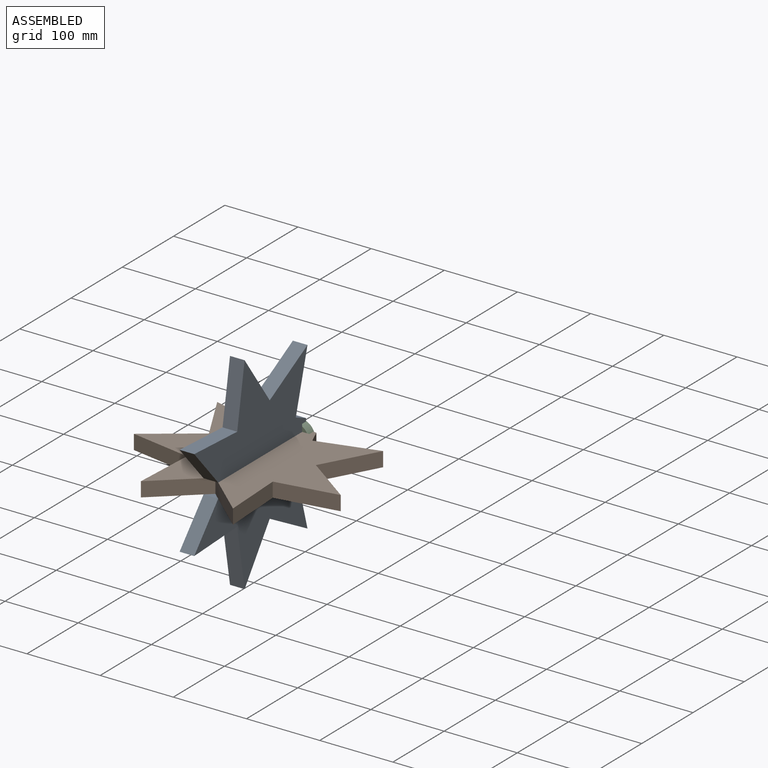
[diagram: assembled view]
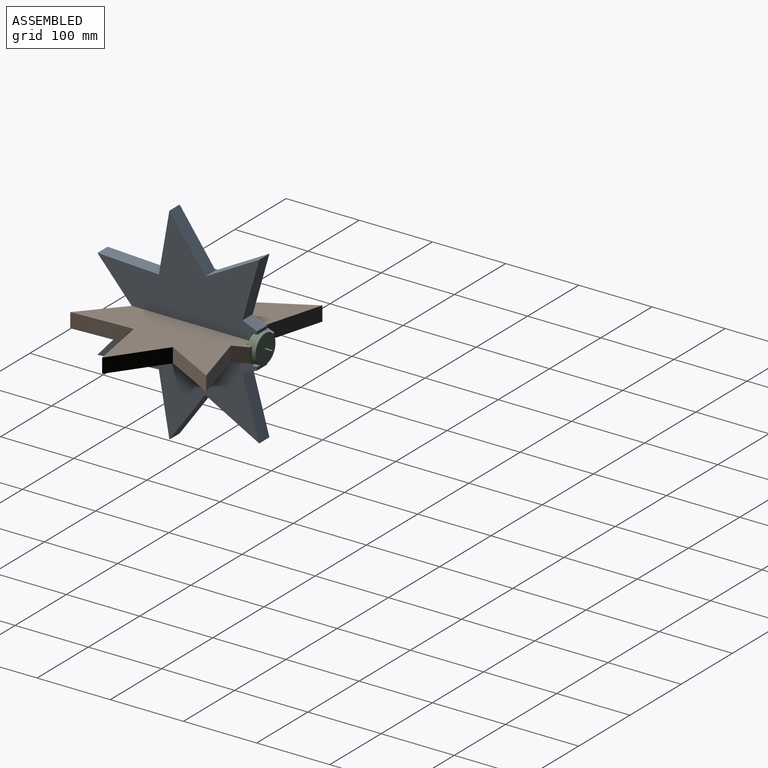
[diagram: assembled view, second angle]
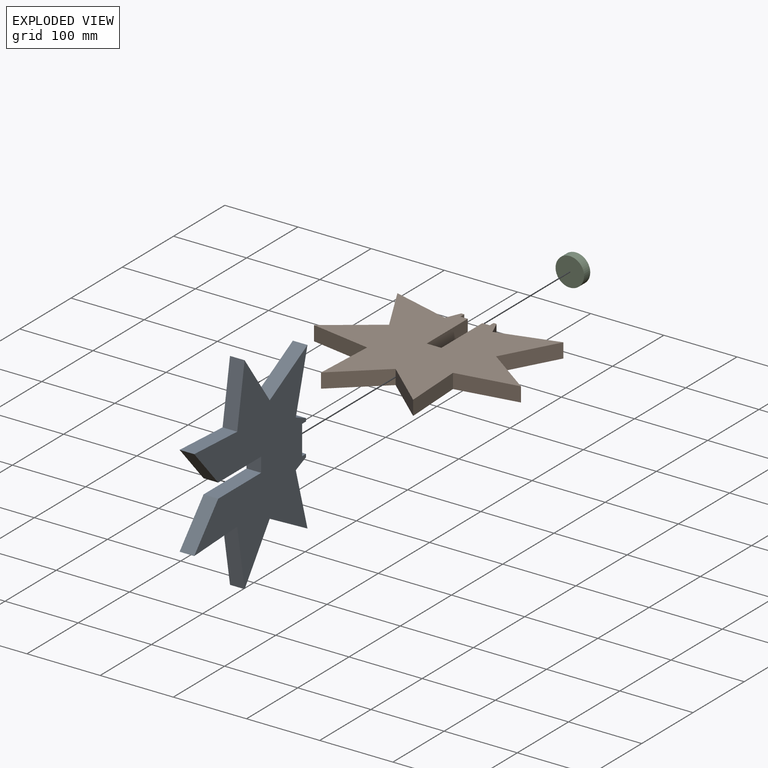
[diagram: exploded view]
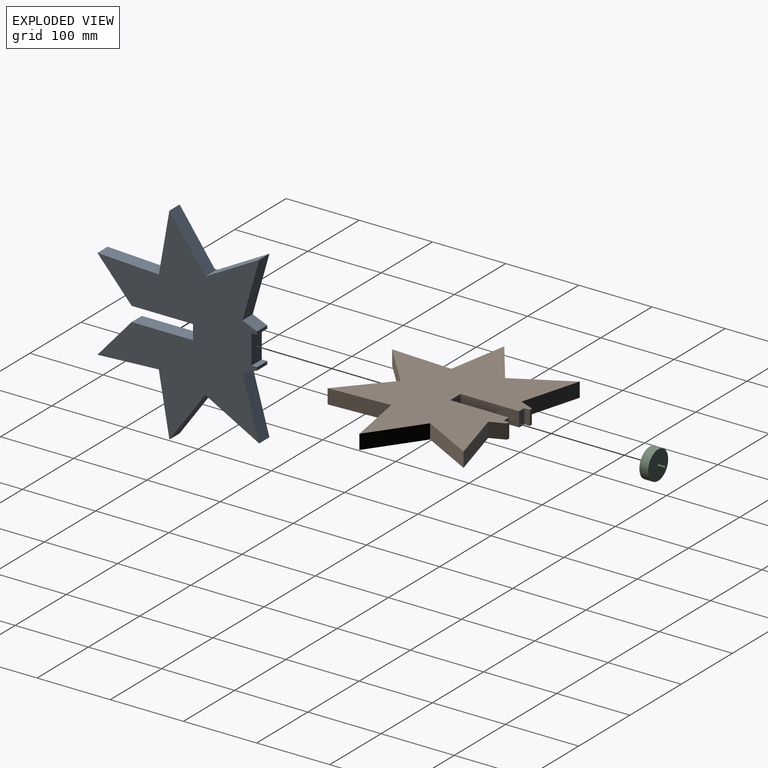
[diagram: exploded view, second angle]
ASSEMBLY  parts=3 mates=2
PART A: 24 faces, bbox 282.7x221x20 mm
  f0: plane 282.73x221.05mm, normal (0,0,1), area 29751.4mm2, adj f2,f3,f4,f5,f6,f7,f8,f9
  f1: plane 282.73x221.05mm, normal (0,0,-1), area 29751.4mm2, adj f2,f3,f4,f5,f6,f7,f8,f9
  f2: plane 68.25x48.95mm, normal (-0.58,0.81,0), area 1679.8mm2, adj f0,f1,f3,f15
  f3: plane 82.73x20mm, normal (-0.17,-0.98,0), area 1679.8mm2, adj f0,f1,f2,f4
  f4: plane 83.88x20mm, normal (-1,0.05,0), area 1679.8mm2, adj f0,f1,f3,f5
  f5: plane 52.91x46.8mm, normal (0.66,-0.75,0), area 1412.8mm2, adj f0,f1,f4,f16
  f6: plane 52.91x46.8mm, normal (-0.66,-0.75,0), area 1412.8mm2, adj f0,f1,f7,f17
  f7: plane 83.88x20mm, normal (1,0.05,0), area 1679.8mm2, adj f0,f1,f6,f8
  f8: plane 82.73x20mm, normal (0.17,-0.98,0), area 1679.8mm2, adj f0,f1,f7,f9
  f9: plane 68.25x48.95mm, normal (0.58,0.81,0), area 1679.8mm2, adj f0,f1,f8,f10
  f10: plane 73.72x40.25mm, normal (0.88,-0.48,0), area 1679.8mm2, adj f0,f1,f9,f11
  f11: plane 80.82x22.83mm, normal (-0.27,0.96,0), area 1679.8mm2, adj f0,f1,f10,f12
  f12: plane 20x19.93mm, normal (0.92,0.39,0), area 432.3mm2, adj f0,f1,f11,f22
  f13: plane 20x19.93mm, normal (-0.92,0.39,0), area 432.3mm2, adj f0,f1,f14,f23
  f14: plane 80.82x22.83mm, normal (0.27,0.96,0), area 1679.8mm2, adj f0,f1,f13,f15
  f15: plane 73.72x40.25mm, normal (-0.88,-0.48,0), area 1679.8mm2, adj f0,f1,f2,f14
  f16: plane 83.84x20mm, normal (1,0,0), area 1676.9mm2, adj f0,f1,f5,f18
  f17: plane 83.84x20mm, normal (-1,0,0), area 1676.9mm2, adj f0,f1,f6,f18
  f18: plane 20x20mm, normal (0,-1,0), area 400mm2, adj f0,f1,f16,f17
  f19: plane 20x7.5mm, normal (-1,0,0), area 150mm2, adj f0,f1,f21,f22
  f20: plane 20x7.5mm, normal (1,0,0), area 150mm2, adj f0,f1,f21,f23
  f21: plane 40x20mm, normal (0,1,0), area 800mm2, adj f0,f1,f19,f20
  f22: plane 20x4.17mm, normal (0,1,0), area 83.3mm2, adj f0,f1,f12,f19
  f23: plane 20x4.17mm, normal (0,1,0), area 83.3mm2, adj f0,f1,f13,f20
PART B: 25 faces, bbox 282.7x221x20 mm
  f0: plane 20x19.93mm, normal (0.92,0.39,0), area 432.3mm2, adj f11,f14,f15,f20
  f1: plane 20x19.93mm, normal (-0.92,0.39,0), area 432.3mm2, adj f12,f14,f15,f22
  f2: plane 68.25x48.95mm, normal (-0.58,0.81,0), area 1679.8mm2, adj f3,f13,f14,f15
  f3: plane 82.73x20mm, normal (-0.17,-0.98,0), area 1679.8mm2, adj f2,f4,f14,f15
  f4: plane 83.88x20mm, normal (-1,0.05,0), area 1679.8mm2, adj f3,f5,f14,f15
  f5: plane 62.91x55.64mm, normal (0.66,-0.75,0), area 1679.8mm2, adj f4,f6,f14,f15
  f6: plane 62.91x55.64mm, normal (-0.66,-0.75,0), area 1679.8mm2, adj f5,f7,f14,f15
  f7: plane 83.88x20mm, normal (1,0.05,0), area 1679.8mm2, adj f6,f8,f14,f15
  f8: plane 82.73x20mm, normal (0.17,-0.98,0), area 1679.8mm2, adj f7,f9,f14,f15
  f9: plane 68.25x48.95mm, normal (0.58,0.81,0), area 1679.8mm2, adj f8,f10,f14,f15
  f10: plane 73.72x40.25mm, normal (0.88,-0.48,0), area 1679.8mm2, adj f9,f11,f14,f15
  f11: plane 80.82x22.83mm, normal (-0.27,0.96,0), area 1679.8mm2, adj f0,f10,f14,f15
  f12: plane 80.82x22.83mm, normal (0.27,0.96,0), area 1679.8mm2, adj f1,f13,f14,f15
  f13: plane 73.72x40.25mm, normal (-0.88,-0.48,0), area 1679.8mm2, adj f2,f12,f14,f15
  f14: plane 282.73x221.05mm, normal (0,0,1), area 29739.8mm2, adj f0,f1,f2,f3,f4,f5,f6,f7
  f15: plane 282.73x221.05mm, normal (0,0,-1), area 29739.8mm2, adj f0,f1,f2,f3,f4,f5,f6,f7
  f16: plane 80x20mm, normal (1,0,0), area 1600mm2, adj f14,f15,f17,f24
  f17: plane 20x20mm, normal (0,1,0), area 400mm2, adj f14,f15,f16,f18
  f18: plane 80x20mm, normal (-1,0,0), area 1600mm2, adj f14,f15,f17,f19
  f19: plane 20x10mm, normal (0,1,0), area 200mm2, adj f14,f15,f18,f21
  f20: plane 20x4.17mm, normal (0,1,0), area 83.3mm2, adj f0,f14,f15,f21
  f21: plane 20x7.5mm, normal (-1,0,0), area 150mm2, adj f14,f15,f19,f20
  f22: plane 20x4.17mm, normal (0,1,0), area 83.3mm2, adj f1,f14,f15,f23
  f23: plane 20x7.5mm, normal (1,0,0), area 150mm2, adj f14,f15,f22,f24
  f24: plane 20x10mm, normal (0,1,0), area 200mm2, adj f14,f15,f16,f23
PART C: 5 faces, bbox 39x39x22 mm
  f0: cylinder r=19.5mm len=39mm, axis (0,0,-1), area 1470.3mm2, adj f1,f2
  f1: plane 39x39mm, normal (0,0,1), area 1191.4mm2, adj f0,f3
  f2: plane 39x39mm, normal (0,0,-1), area 1194.6mm2, adj f0
  f3: cylinder r=1mm len=10mm, axis (0,0,-1), area 62.8mm2, adj f1,f4
  f4: plane 2x2mm, normal (0,0,1), area 3.1mm2, adj f3
PLACE A rot(axis=(0,-1,0),90deg) t=(10,0,10)mm
PLACE B at identity
PLACE C rot(axis=(-1,0,0),90deg) t=(0,80,10)mm
MATE fastened A.f18 <-> B.f17  axis (0,-1,0) through (0,0,10)mm
MATE fastened C.f0 <-> A.f21  axis (0,-1,0) through (0,80,10)mm
